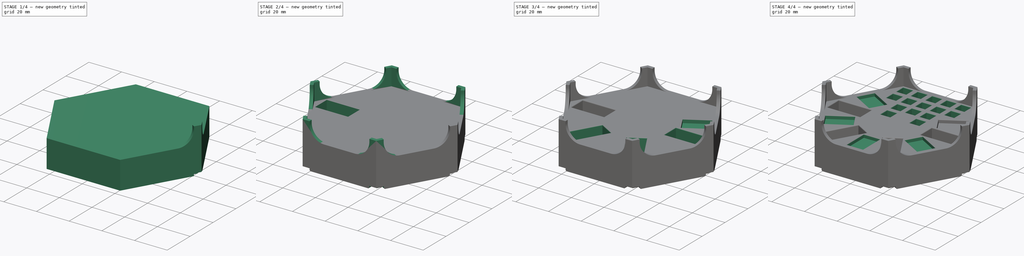
[diagram: build sequence overview — one tinted view per stage of 4, left to right]
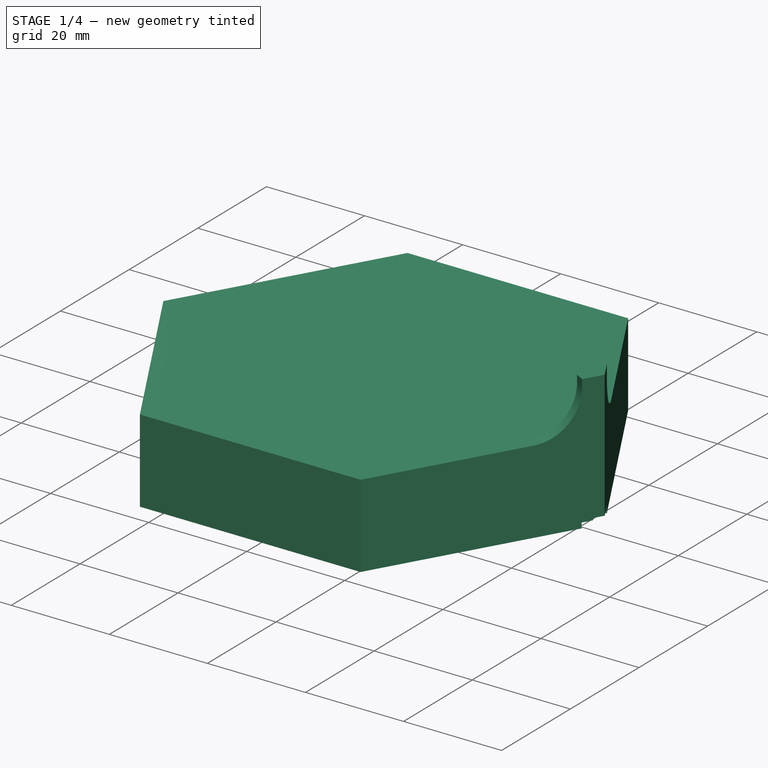
[diagram: stage 1 of 4 — iso view after this stage's code; geometry added in this stage tinted green]
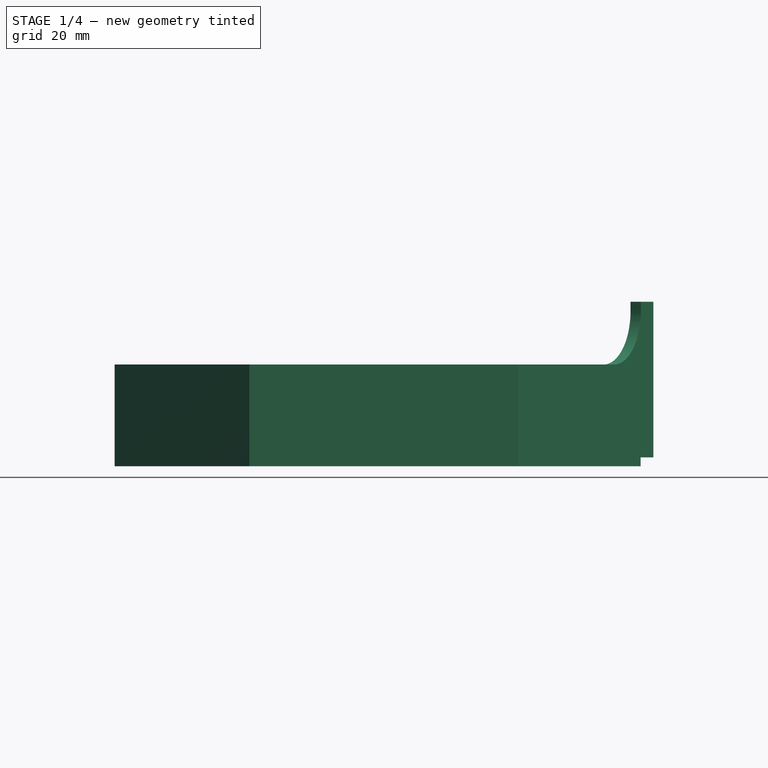
[diagram: stage 1 of 4 — front view after this stage's code; geometry added in this stage tinted green]
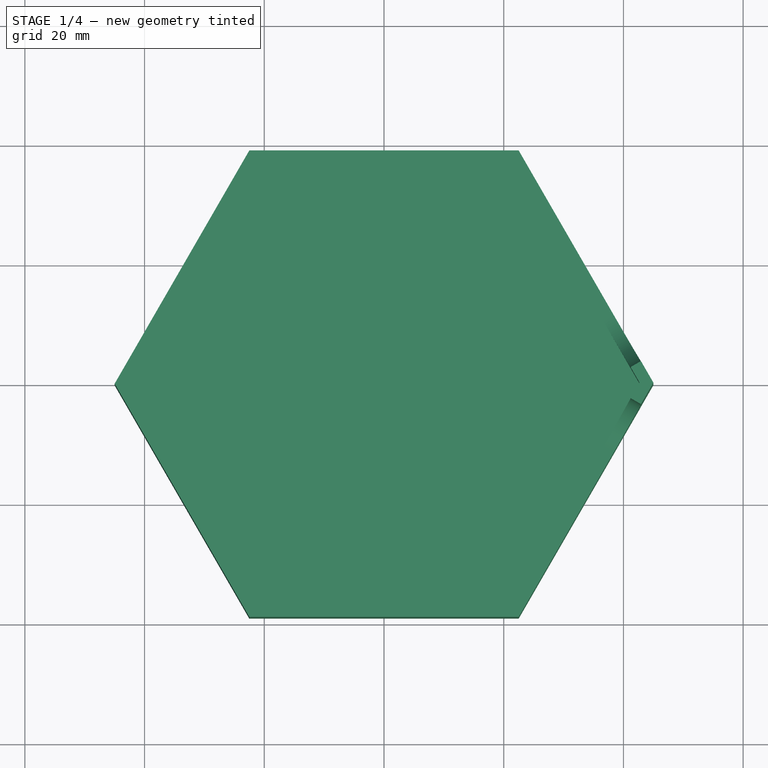
[diagram: stage 1 of 4 — top view after this stage's code; geometry added in this stage tinted green]
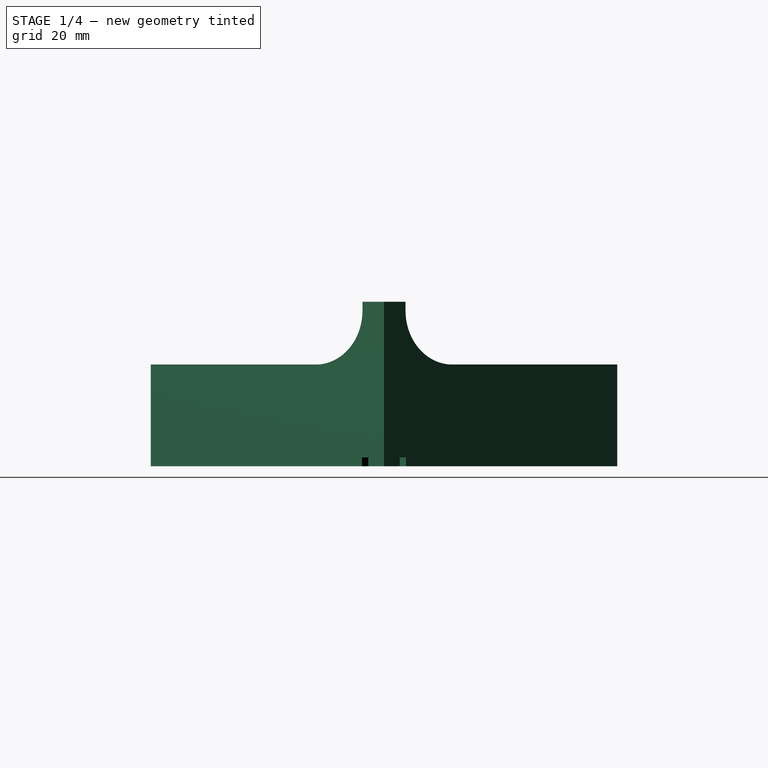
[diagram: stage 1 of 4 — right view after this stage's code; geometry added in this stage tinted green]
FCSTD DOCUMENT  (FreeCAD 1.0R39285 (Git))
Label: catan player part holder
License: All rights reserved
LicenseURL: https://en.wikipedia.org/wiki/All_rights_reserved
objects: Sketcher::SketchObject×6, PartDesign::Fillet×4, PartDesign::Pocket×4, PartDesign::PolarPattern×3, PartDesign::Pad×2, PartDesign::Chamfer×1, PartDesign::Body×1
note: 52 computed .brp shape members not serialized (recipe doc carries the construction recipe); baked Part::Feature solids carry a one-line shape summary decoded from their .brp

FEATURE [Sketcher::SketchObject] Sketch  label="baseSketch"
  ArcFitTolerance = 1e-06
  AttachmentSupport = -> [XY_Plane]
  FullyConstrained = true
  MakeInternals = false
  MapMode = 5
  sketch-geometry (7):
    g0: LineSegment StartX=45 StartY=2.1e-15 StartZ=0 EndX=22.5 EndY=38.9711 EndZ=0
    g1: LineSegment StartX=22.5 StartY=38.9711 StartZ=0 EndX=-22.5 EndY=38.9711 EndZ=0
    g2: LineSegment StartX=-22.5 StartY=38.9711 StartZ=0 EndX=-45 EndY=8.3e-15 EndZ=0
    g3: LineSegment StartX=-45 StartY=8.3e-15 StartZ=0 EndX=-22.5 EndY=-38.9711 EndZ=0
    g4: LineSegment StartX=-22.5 StartY=-38.9711 StartZ=0 EndX=22.5 EndY=-38.9711 EndZ=0
    g5: LineSegment StartX=22.5 StartY=-38.9711 StartZ=0 EndX=45 EndY=2.1e-15 EndZ=0
    g6: Circle [constr] CenterX=0 CenterY=0 CenterZ=0 NormalX=0 NormalY=0 NormalZ=1 AngleXU=0 Radius=45
  constraints (16):
    c: Coincident(g0,g1)
    c: Coincident(g1,g2)
    c: Coincident(g2,g3)
    c: Coincident(g3,g4)
    c: Coincident(g4,g5)
    c: Coincident(g5,g0)
    c: Equal(g0, g1-g5) x5
    c: PointOnObject(g0,g6)
    c: PointOnObject(g1,g6)
    c: PointOnObject(g2,g6)
    c: PointOnObject(g3,g6)
    c: PointOnObject(g4,g6)
    c: PointOnObject(g5,g6)
    c: Radius(g6) = 45
    c: Coincident(g6,g-1)
    c: PointOnObject(g5,g-1)
FEATURE [PartDesign::Pad] Pad  label="basePad"
  Direction = (0,0,1)
  Length = 17
  Length2 = 10
  Profile = -> Sketch
  ReferenceAxis = -> Sketch [N_Axis]
  Refine = true
  Suppressed = false
  Type = 0
FEATURE [Sketcher::SketchObject] Sketch001  label="pillerSketch"
  ArcFitTolerance = 1e-06
  AttachmentSupport = -> [Pad]
  ExternalGeometry = -> [Pad]
  FullyConstrained = true
  MakeInternals = false
  MapMode = 5
  Placement = pos=(0,0,17) rot=(0,0,1;0rad)
  sketch-geometry (6):
    g0: LineSegment StartX=45 StartY=7e-16 StartZ=0 EndX=42.9226 EndY=3.59808 EndZ=0
    g1: LineSegment StartX=42.9226 StartY=3.59808 StartZ=0 EndX=41.1906 EndY=2.59808 EndZ=0
    g2: LineSegment StartX=41.1906 StartY=2.59808 StartZ=0 EndX=42.6906 EndY=2e-16 EndZ=0
    g3: LineSegment StartX=42.6906 StartY=2e-16 StartZ=0 EndX=41.1906 EndY=-2.59808 EndZ=0
    g4: LineSegment StartX=41.1906 StartY=-2.59808 StartZ=0 EndX=42.9226 EndY=-3.59808 EndZ=0
    g5: LineSegment StartX=42.9226 StartY=-3.59808 StartZ=0 EndX=45 EndY=7e-16 EndZ=0
  constraints (17):
    c: Coincident(g-4,g0)
    c: PointOnObject(g0,g-3)
    c: Coincident(g0,g1)
    c: Coincident(g1,g2)
    c: PointOnObject(g2,g-1)
    c: Coincident(g2,g3)
    c: Coincident(g3,g4)
    c: PointOnObject(g4,g-4)
    c: Coincident(g4,g5)
    c: Coincident(g5,g0)
    c: Perpendicular(g1,g0)
    c: Perpendicular(g2,g1)
    c: Perpendicular(g4,g3)
    c: Perpendicular(g5,g4)
    c: Equal(g0,g5)
    c: Distance(g2) = 3
    c: Distance(g1) = 2
FEATURE [PartDesign::Pad] Pad001  label="pillerPad"
  BaseFeature = -> Pad
  Direction = (0,0,1)
  Length = 10.5
  Length2 = 10
  Profile = -> Sketch001
  ReferenceAxis = -> Sketch001 [N_Axis]
  Refine = true
  Suppressed = false
  Type = 0
FEATURE [PartDesign::Fillet] Fillet  label="piller side fillet"
  Base = -> Pad001 [Edge10,Edge13]
  BaseFeature = -> Pad001
  Radius = 9
  Refine = true
  SupportTransform = false
  Suppressed = false
  UseAllEdges = false
FEATURE [Sketcher::SketchObject] Sketch002  label="PillerGroveSketch"
  ArcFitTolerance = 1e-06
  AttachmentSupport = -> [Fillet]
  ExternalGeometry = -> [Sketch001]
  FullyConstrained = true
  MakeInternals = false
  MapMode = 5
  Placement = pos=(0,0,0) rot=(1,0,0;3.14159rad)
  sketch-geometry (8):
    g0: LineSegment [constr] StartX=41.1906 StartY=2.59808 StartZ=0 EndX=41.1406 EndY=2.68468 EndZ=0
    g1: LineSegment [constr] StartX=41.1406 StartY=2.68468 StartZ=0 EndX=41.054 EndY=2.63468 EndZ=0
    g2: LineSegment StartX=42.5751 StartY=0 StartZ=0 EndX=41.054 EndY=-2.63468 EndZ=0
    g3: LineSegment StartX=41.054 StartY=-2.63468 StartZ=0 EndX=42.8726 EndY=-3.68468 EndZ=0
    g4: LineSegment StartX=42.8726 StartY=-3.68468 StartZ=0 EndX=45 EndY=-9e-16 EndZ=0
    g5: LineSegment StartX=42.5751 StartY=0 StartZ=0 EndX=41.054 EndY=2.63468 EndZ=0
    g6: LineSegment StartX=41.054 StartY=2.63468 StartZ=0 EndX=42.8726 EndY=3.68468 EndZ=0
    g7: LineSegment StartX=42.8726 StartY=3.68468 StartZ=0 EndX=45 EndY=-1.1e-15 EndZ=0
  constraints (22):
    c: Coincident(g-5,g0)
    c: Coincident(g0,g1)
    c: Distance(g0) = 0.1
    c: Distance(g1) = 0.1
    c: Perpendicular(g0,g-4)
    c: Perpendicular(g1,g0)
    c: PointOnObject(g2,g-1)
    c: Coincident(g2,g3)
    c: Coincident(g3,g4)
    c: Parallel(g4,g-8)
    c: Parallel(g-7,g3)
    c: Parallel(g-6,g2)
    c: Coincident(g2,g5)
    c: Coincident(g5,g6)
    c: Coincident(g6,g7)
    c: Coincident(g7,g4)
    c: PointOnObject(g6,g-3)
    c: Perpendicular(g6,g7)
    c: Perpendicular(g5,g6)
    c: Equal(g7,g4)
    c: Coincident(g4,g-8)
    c: Coincident(g5,g1)
FEATURE [PartDesign::Pocket] Pocket  label="PillerGrovePocket"
  BaseFeature = -> Fillet
  Direction = (0,0,1)
  Length = 1.5
  Length2 = 5
  Profile = -> Sketch002
  ReferenceAxis = -> Sketch002 [N_Axis]
  Refine = true
  Suppressed = false
  Type = 0
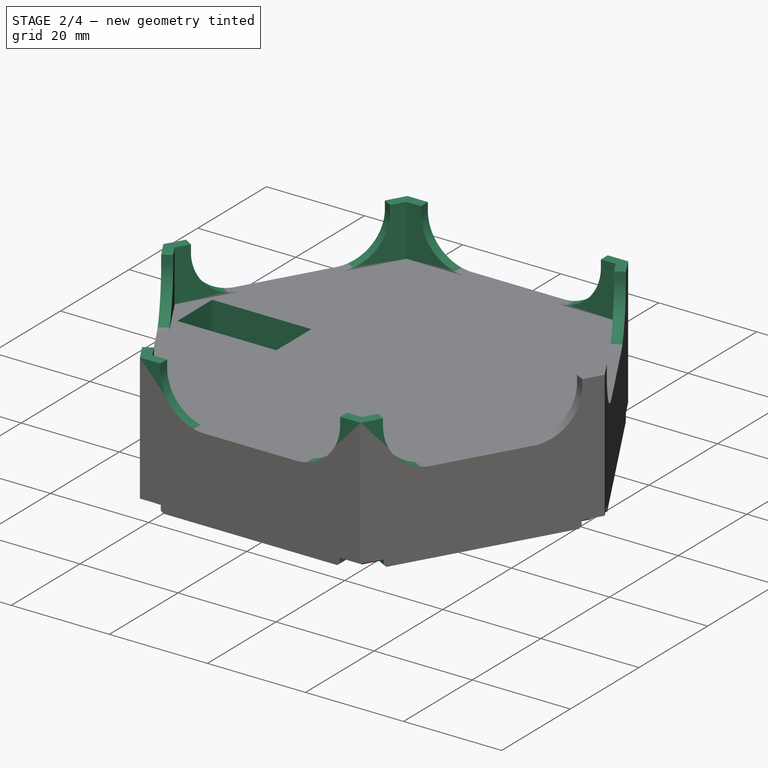
[diagram: stage 2 of 4 — iso view after this stage's code; geometry added in this stage tinted green]
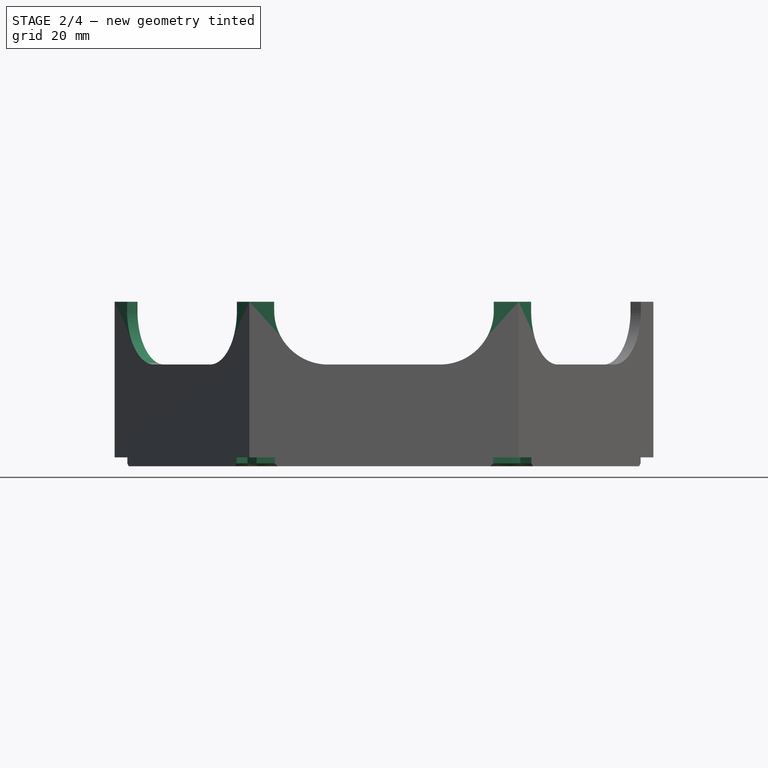
[diagram: stage 2 of 4 — front view after this stage's code; geometry added in this stage tinted green]
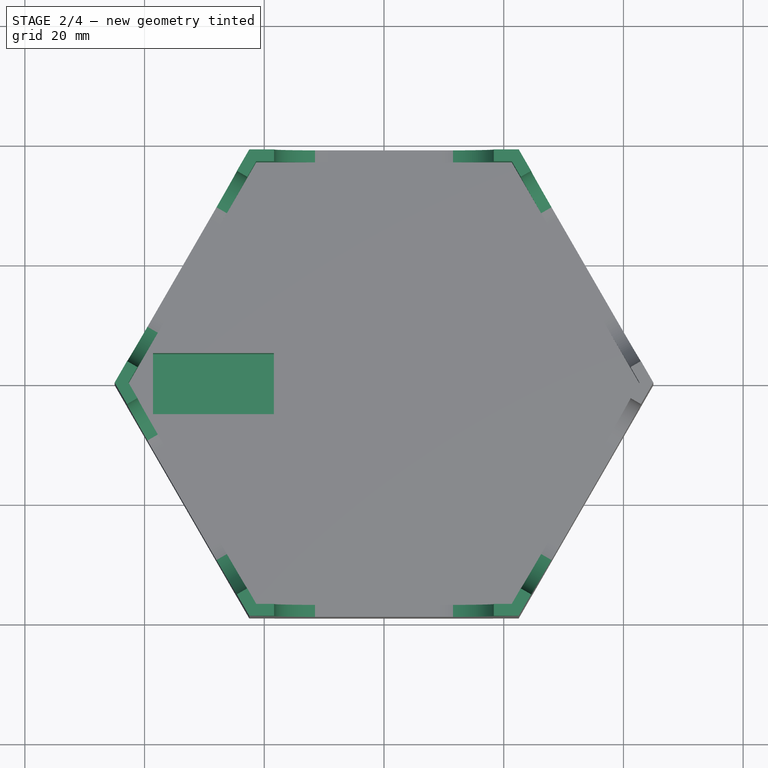
[diagram: stage 2 of 4 — top view after this stage's code; geometry added in this stage tinted green]
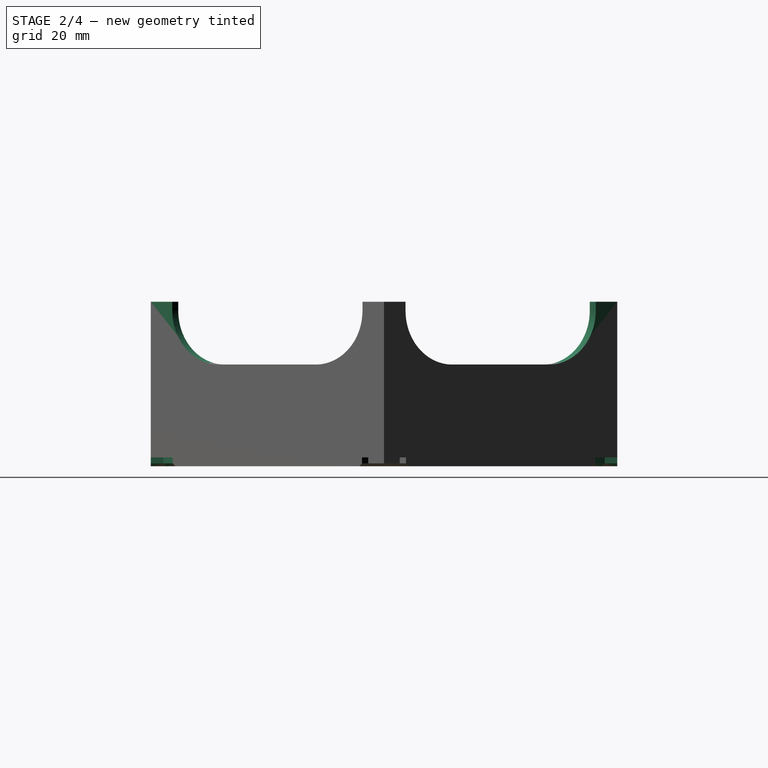
[diagram: stage 2 of 4 — right view after this stage's code; geometry added in this stage tinted green]
FEATURE [PartDesign::Chamfer] Chamfer  label="PillerGroveChamfer"
  Angle = 45
  Base = -> Pocket [Edge51,Edge54,Edge53,Edge52]
  BaseFeature = -> Pocket
  ChamferType = 0
  FlipDirection = false
  Refine = true
  Size = 0.5
  Size2 = 1
  SupportTransform = false
  Suppressed = false
  UseAllEdges = false
FEATURE [PartDesign::PolarPattern] PolarPattern  label="PillerAndGrovePolarPattern"
  Angle = 360
  Axis = -> Sketch002 [N_Axis]
  BaseFeature = -> Chamfer
  Mode = 0
  Occurrences = 6
  Offset = 120
  Originals = -> [Pocket,Chamfer,Fillet,Pad001]
  Refine = true
  Suppressed = false
  TransformMode = 0
FEATURE [Sketcher::SketchObject] Sketch003  label="CitySketch"
  ArcFitTolerance = 1e-06
  AttachmentSupport = -> [PolarPattern]
  ExternalGeometry = -> [PolarPattern]
  FullyConstrained = true
  MakeInternals = false
  MapMode = 5
  Placement = pos=(0,0,17) rot=(0,0,1;0rad)
  sketch-geometry (4):
    g0: LineSegment StartX=-38.5914 StartY=5.1 StartZ=0 EndX=-38.5914 EndY=-5.1 EndZ=0
    g1: LineSegment StartX=-38.5914 StartY=-5.1 StartZ=0 EndX=-18.3914 EndY=-5.1 EndZ=0
    g2: LineSegment StartX=-18.3914 StartY=-5.1 StartZ=0 EndX=-18.3914 EndY=5.1 EndZ=0
    g3: LineSegment StartX=-18.3914 StartY=5.1 StartZ=0 EndX=-38.5914 EndY=5.1 EndZ=0
  constraints (11):
    c: Coincident(g0,g1)
    c: Coincident(g1,g2)
    c: Coincident(g2,g3)
    c: Coincident(g3,g0)
    c: Vertical(g0)
    c: Horizontal(g1)
    c: Horizontal(g3)
    c: Distance(g0,g2) = 20.2
    c: Distance(g1,g3) = 10.2
    c: Symmetric(g2,g1,g-1)
    c: Distance(g0,g-3) = 1
FEATURE [PartDesign::Pocket] Pocket001  label="CityPocket"
  BaseFeature = -> PolarPattern
  Direction = (0,0,-1)
  Length = 9.5
  Length2 = 5
  Profile = -> Sketch003
  ReferenceAxis = -> Sketch003 [N_Axis]
  Refine = true
  Suppressed = false
  Type = 0
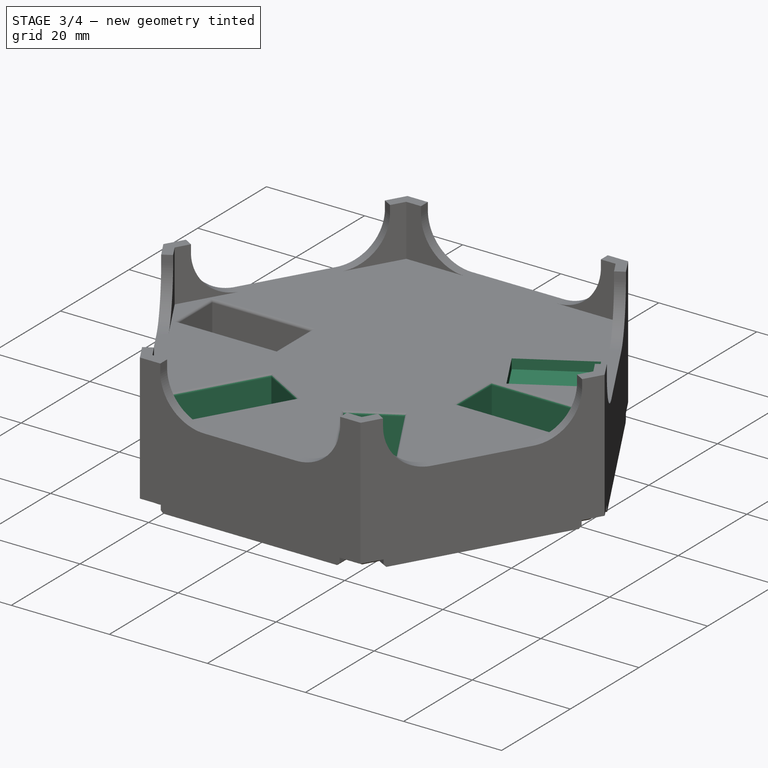
[diagram: stage 3 of 4 — iso view after this stage's code; geometry added in this stage tinted green]
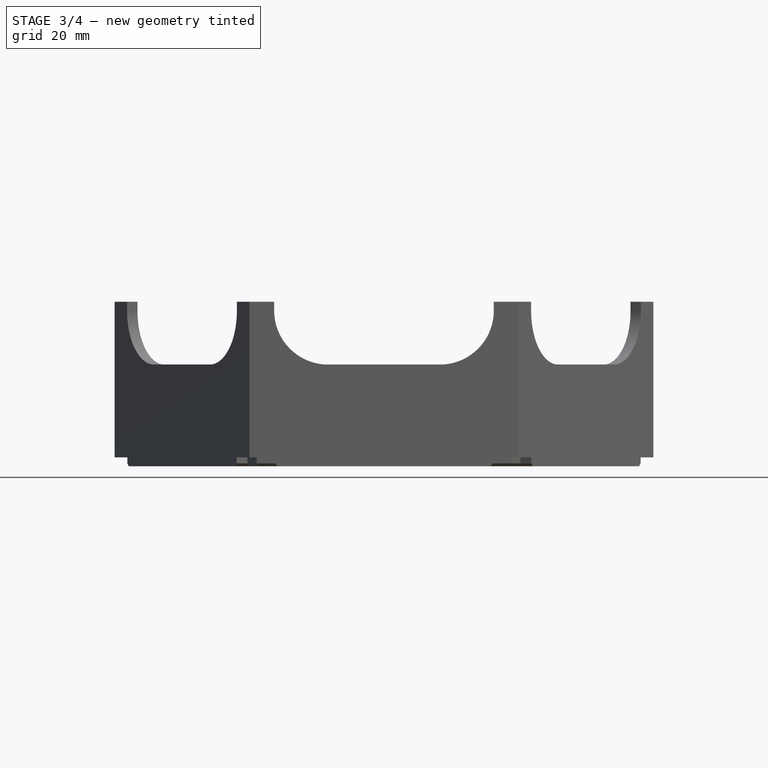
[diagram: stage 3 of 4 — front view after this stage's code; geometry added in this stage tinted green]
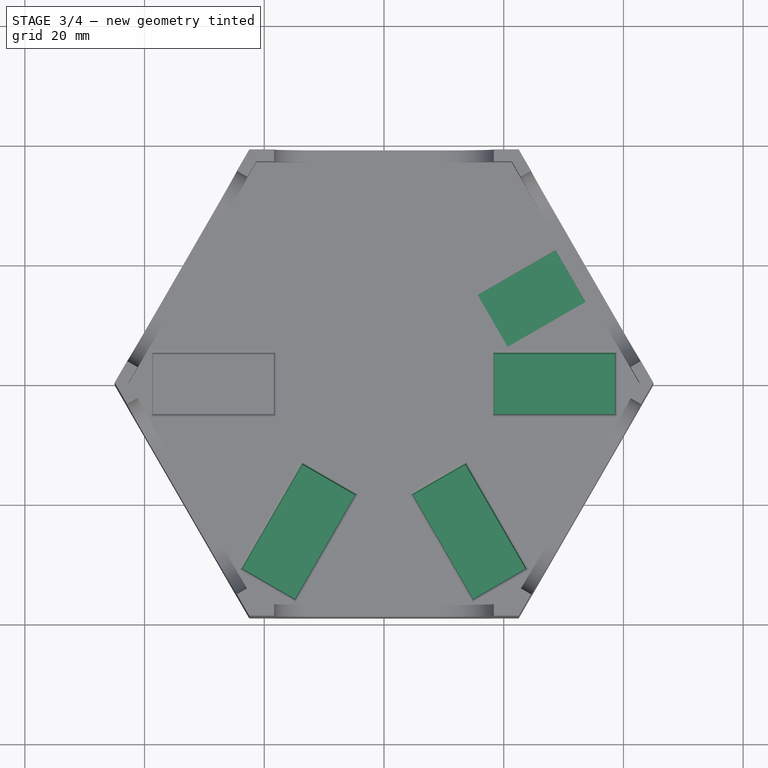
[diagram: stage 3 of 4 — top view after this stage's code; geometry added in this stage tinted green]
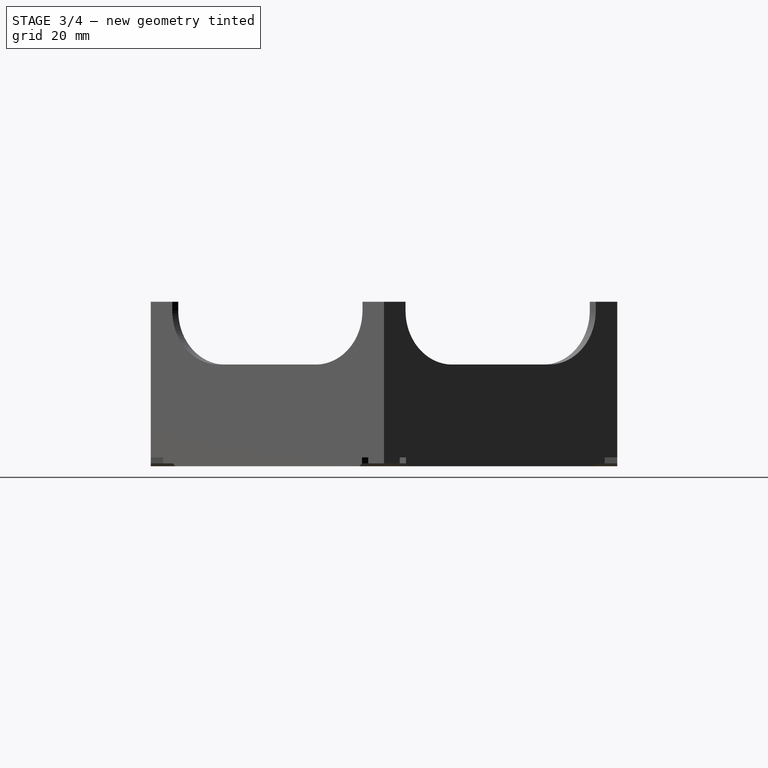
[diagram: stage 3 of 4 — right view after this stage's code; geometry added in this stage tinted green]
FEATURE [PartDesign::Fillet] Fillet001  label="CityFillet"
  Base = -> Pocket001 [Edge197,Edge196,Edge195,Edge194]
  BaseFeature = -> Pocket001
  Radius = 0.5
  Refine = true
  SupportTransform = false
  Suppressed = false
  UseAllEdges = false
FEATURE [PartDesign::PolarPattern] PolarPattern001  label="CityPolarPattern"
  Angle = 360
  Axis = -> Z_Axis
  BaseFeature = -> Fillet001
  Mode = 1
  Occurrences = 4
  Offset = 60
  Originals = -> [Fillet001,Pocket001]
  Refine = true
  Suppressed = false
  TransformMode = 0
FEATURE [Sketcher::SketchObject] Sketch004  label="SettlementSketch"
  ArcFitTolerance = 1e-06
  AttachmentSupport = -> [PolarPattern001]
  ExternalGeometry = -> [PolarPattern001]
  FullyConstrained = true
  MakeInternals = false
  MapMode = 5
  Placement = pos=(0,0,17) rot=(0,0,1;0rad)
  sketch-geometry (6):
    g0: LineSegment StartX=15.6615 StartY=14.8157 StartZ=0 EndX=28.6519 EndY=22.3157 EndZ=0
    g1: LineSegment StartX=28.6519 StartY=22.3157 StartZ=0 EndX=33.6519 EndY=13.6554 EndZ=0
    g2: LineSegment StartX=33.6519 StartY=13.6554 StartZ=0 EndX=20.6615 EndY=6.15544 EndZ=0
    g3: LineSegment StartX=20.6615 StartY=6.15544 StartZ=0 EndX=15.6615 EndY=14.8157 EndZ=0
    g4: LineSegment [constr] StartX=0 StartY=0 StartZ=0 EndX=15.6615 EndY=14.8157 EndZ=0
    g5: LineSegment [constr] StartX=0 StartY=0 StartZ=0 EndX=20.6615 EndY=6.15544 EndZ=0
  constraints (16):
    c: Coincident(g0,g1)
    c: Coincident(g1,g2)
    c: Coincident(g2,g3)
    c: Coincident(g3,g0)
    c: Perpendicular(g0,g1)
    c: Perpendicular(g3,g0)
    c: Perpendicular(g2,g3)
    c: Angle(g-1,g2) = 0.523599
    c: Distance(g0) = 15
    c: Distance(g1) = 10
    c: Distance(g1,g-3) = 1
    c: Coincident(g4,g-1)
    c: Coincident(g4,g0)
    c: Coincident(g5,g4)
    c: Coincident(g5,g2)
    c: Equal(g4,g5)
FEATURE [PartDesign::Pocket] Pocket002  label="SettlementPocket"
  BaseFeature = -> PolarPattern001
  Direction = (0,0,-1)
  Length = 2
  Length2 = 5
  Profile = -> Sketch004
  ReferenceAxis = -> Sketch004 [N_Axis]
  Refine = true
  Suppressed = false
  Type = 0
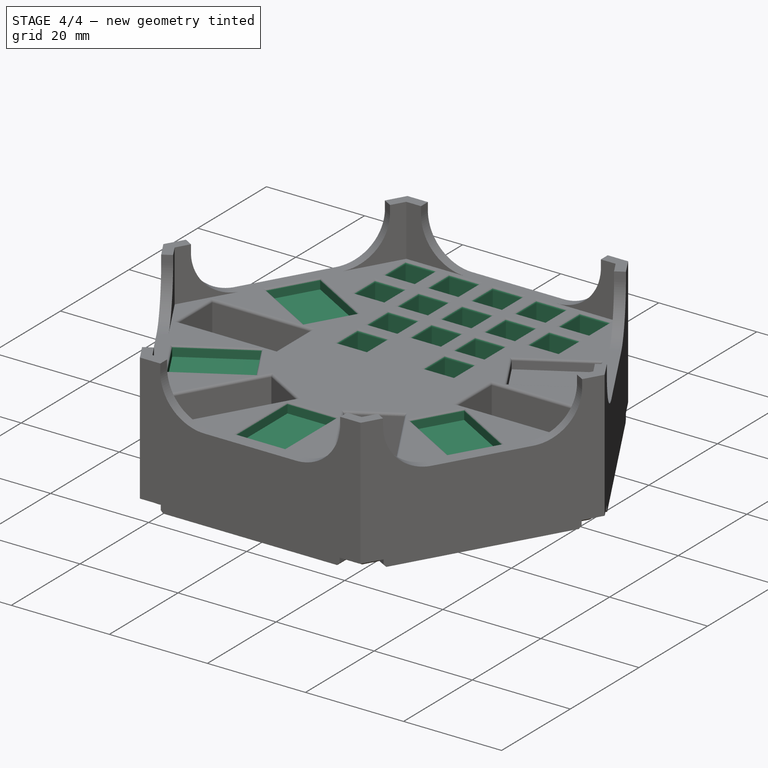
[diagram: stage 4 of 4 — iso view after this stage's code; geometry added in this stage tinted green]
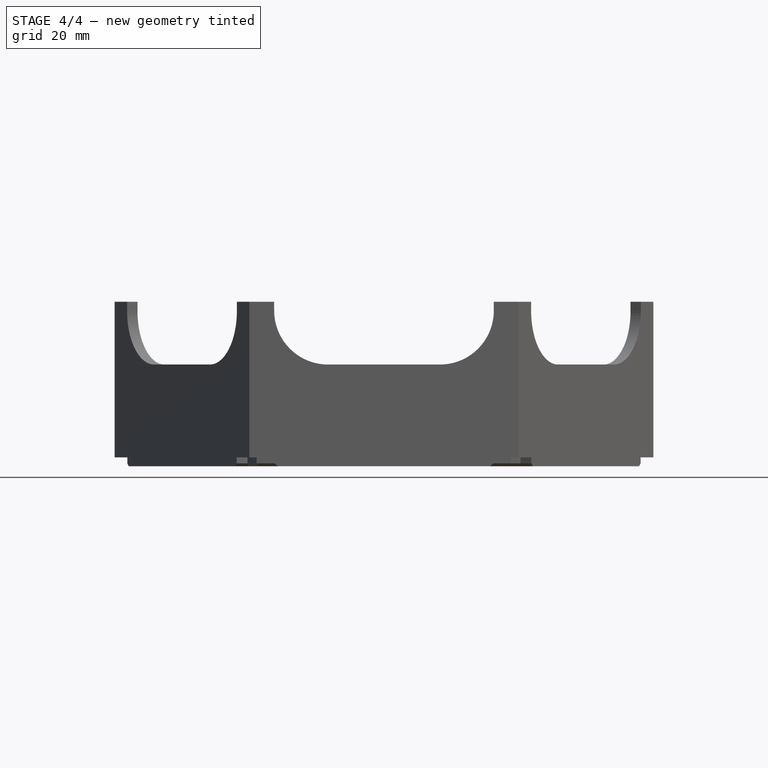
[diagram: stage 4 of 4 — front view after this stage's code; geometry added in this stage tinted green]
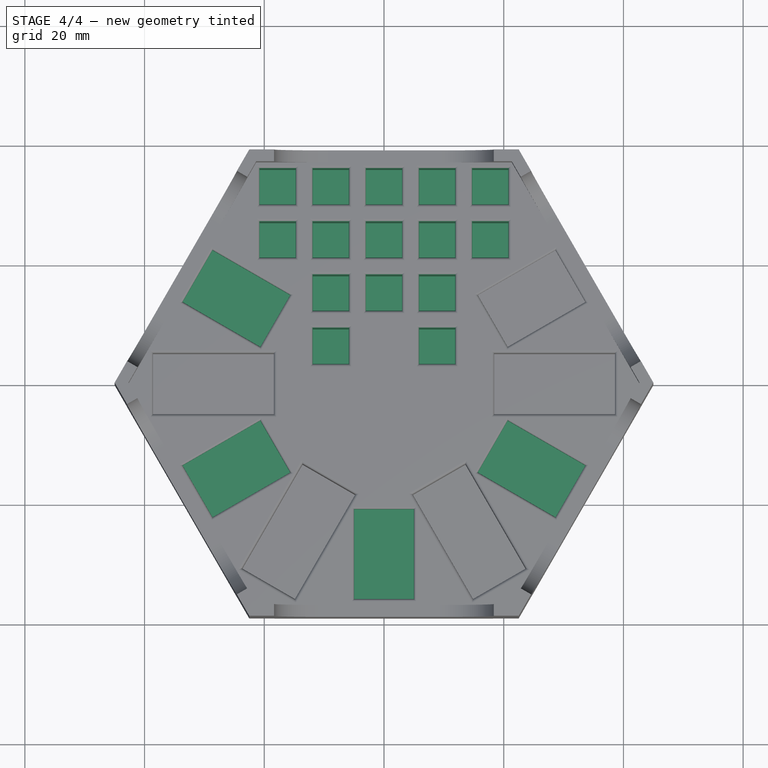
[diagram: stage 4 of 4 — top view after this stage's code; geometry added in this stage tinted green]
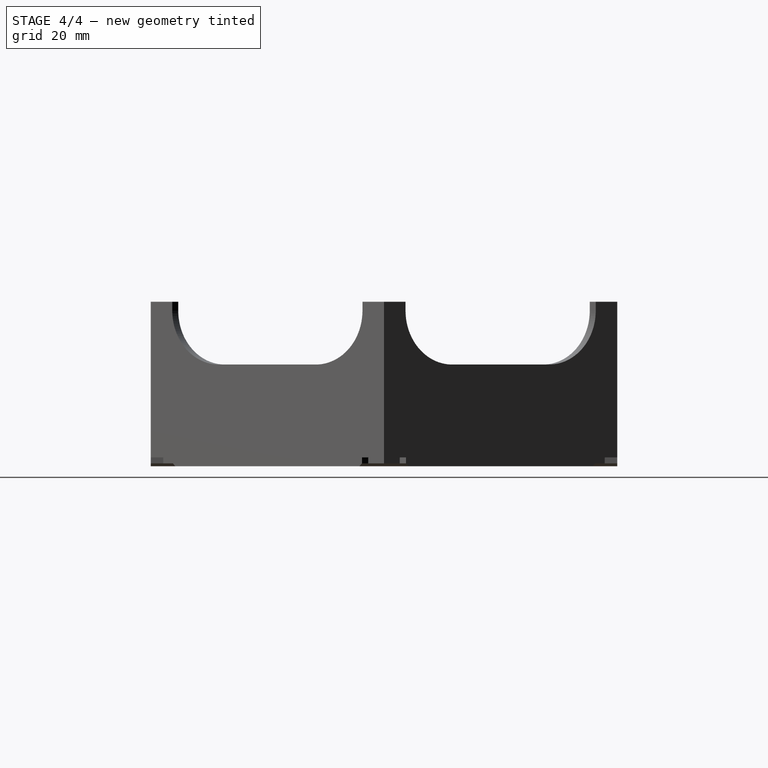
[diagram: stage 4 of 4 — right view after this stage's code; geometry added in this stage tinted green]
FEATURE [PartDesign::Fillet] Fillet002  label="SettlementFillet"
  Base = -> Pocket002 [Edge50,Edge47,Edge49,Edge48]
  BaseFeature = -> Pocket002
  Radius = 0.4
  Refine = true
  SupportTransform = false
  Suppressed = false
  UseAllEdges = false
FEATURE [PartDesign::PolarPattern] PolarPattern002  label="SettlementPolarPattern"
  Angle = 360
  Axis = -> Z_Axis
  BaseFeature = -> Fillet002
  Mode = 1
  Occurrences = 5
  Offset = 60
  Originals = -> [Fillet002,Pocket002]
  Refine = true
  Reversed = true
  Suppressed = false
  TransformMode = 0
FEATURE [Sketcher::SketchObject] Sketch005  label="RoadsSketch"
  ArcFitTolerance = 1e-06
  AttachmentSupport = -> [PolarPattern002]
  ExternalGeometry = -> [PolarPattern002]
  FullyConstrained = true
  MakeInternals = false
  MapMode = 5
  Placement = pos=(0,0,17) rot=(0,0,1;0rad)
  sketch-geometry (76):
    g0: LineSegment [constr] StartX=-20.7679 StartY=35.9711 StartZ=0 EndX=-20.7679 EndY=9.31922 EndZ=0
    g1: LineSegment [constr] StartX=-11.884 StartY=35.9711 StartZ=0 EndX=-11.884 EndY=9.31922 EndZ=0
    g2: LineSegment [constr] StartX=-3 StartY=35.9711 StartZ=0 EndX=-3 EndY=9.31922 EndZ=0
    g3: LineSegment [constr] StartX=5.88397 StartY=35.9711 StartZ=0 EndX=5.88397 EndY=9.31922 EndZ=0
    g4: LineSegment [constr] StartX=14.7679 StartY=35.9711 StartZ=0 EndX=14.7679 EndY=9.31922 EndZ=0
    g5: LineSegment [constr] StartX=20.7679 StartY=35.9711 StartZ=0 EndX=20.7679 EndY=27.0872 EndZ=0
    g6: LineSegment [constr] StartX=20.7679 StartY=27.0872 StartZ=0 EndX=20.7679 EndY=18.2032 EndZ=0
    g7: LineSegment [constr] StartX=20.7679 StartY=18.2032 StartZ=0 EndX=20.7679 EndY=9.31922 EndZ=0
    g8: LineSegment [constr] StartX=20.7679 StartY=35.9711 StartZ=0 EndX=14.7679 EndY=35.9711 EndZ=0
    g9: LineSegment [constr] StartX=14.7679 StartY=35.9711 StartZ=0 EndX=5.88397 EndY=35.9711 EndZ=0
    g10: LineSegment [constr] StartX=5.88397 StartY=35.9711 StartZ=0 EndX=-3 EndY=35.9711 EndZ=0
    g11: LineSegment [constr] StartX=-3 StartY=35.9711 StartZ=0 EndX=-11.884 EndY=35.9711 EndZ=0
    g12: LineSegment [constr] StartX=-11.884 StartY=35.9711 StartZ=0 EndX=-20.7679 EndY=35.9711 EndZ=0
    g13: LineSegment [constr] StartX=20.7679 StartY=27.0872 StartZ=0 EndX=-20.7679 EndY=27.0872 EndZ=0
    g14: LineSegment [constr] StartX=20.7679 StartY=18.2032 StartZ=0 EndX=-20.7679 EndY=18.2032 EndZ=0
    g15: LineSegment [constr] StartX=20.7679 StartY=9.31922 StartZ=0 EndX=-20.7679 EndY=9.31922 EndZ=0
    g16: LineSegment StartX=-20.7679 StartY=35.9711 StartZ=0 EndX=-20.7679 EndY=29.9711 EndZ=0
    g17: LineSegment StartX=-20.7679 StartY=29.9711 StartZ=0 EndX=-14.7679 EndY=29.9711 EndZ=0
    g18: LineSegment StartX=-14.7679 StartY=29.9711 StartZ=0 EndX=-14.7679 EndY=35.9711 EndZ=0
    g19: LineSegment StartX=-14.7679 StartY=35.9711 StartZ=0 EndX=-20.7679 EndY=35.9711 EndZ=0
    g20: LineSegment StartX=-11.884 StartY=35.9711 StartZ=0 EndX=-11.884 EndY=29.9711 EndZ=0
    g21: LineSegment StartX=-11.884 StartY=29.9711 StartZ=0 EndX=-5.88397 EndY=29.9711 EndZ=0
    g22: LineSegment StartX=-5.88397 StartY=29.9711 StartZ=0 EndX=-5.88397 EndY=35.9711 EndZ=0
    g23: LineSegment StartX=-5.88397 StartY=35.9711 StartZ=0 EndX=-11.884 EndY=35.9711 EndZ=0
    g24: LineSegment StartX=-3 StartY=35.9711 StartZ=0 EndX=-3 EndY=29.9711 EndZ=0
    g25: LineSegment StartX=-3 StartY=29.9711 StartZ=0 EndX=3 EndY=29.9711 EndZ=0
    g26: LineSegment StartX=3 StartY=29.9711 StartZ=0 EndX=3 EndY=35.9711 EndZ=0
    g27: LineSegment StartX=3 StartY=35.9711 StartZ=0 EndX=-3 EndY=35.9711 EndZ=0
    g28: LineSegment StartX=5.88397 StartY=35.9711 StartZ=0 EndX=5.88397 EndY=29.9711 EndZ=0
    g29: LineSegment StartX=5.88397 StartY=29.9711 StartZ=0 EndX=11.884 EndY=29.9711 EndZ=0
    g30: LineSegment StartX=11.884 StartY=29.9711 StartZ=0 EndX=11.884 EndY=35.9711 EndZ=0
    g31: LineSegment StartX=11.884 StartY=35.9711 StartZ=0 EndX=5.88397 EndY=35.9711 EndZ=0
    g32: LineSegment StartX=14.7679 StartY=35.9711 StartZ=0 EndX=14.7679 EndY=29.9711 EndZ=0
    g33: LineSegment StartX=14.7679 StartY=29.9711 StartZ=0 EndX=20.7679 EndY=29.9711 EndZ=0
    g34: LineSegment StartX=20.7679 StartY=29.9711 StartZ=0 EndX=20.7679 EndY=35.9711 EndZ=0
    g35: LineSegment StartX=20.7679 StartY=35.9711 StartZ=0 EndX=14.7679 EndY=35.9711 EndZ=0
    g36: LineSegment StartX=-20.7679 StartY=27.0872 StartZ=0 EndX=-20.7679 EndY=21.0872 EndZ=0
    g37: LineSegment StartX=-20.7679 StartY=21.0872 StartZ=0 EndX=-14.7679 EndY=21.0872 EndZ=0
    g38: LineSegment StartX=-14.7679 StartY=21.0872 StartZ=0 EndX=-14.7679 EndY=27.0872 EndZ=0
    g39: LineSegment StartX=-14.7679 StartY=27.0872 StartZ=0 EndX=-20.7679 EndY=27.0872 EndZ=0
    g40: LineSegment StartX=-11.884 StartY=27.0872 StartZ=0 EndX=-11.884 EndY=21.0872 EndZ=0
    g41: LineSegment StartX=-11.884 StartY=21.0872 StartZ=0 EndX=-5.88397 EndY=21.0872 EndZ=0
    g42: LineSegment StartX=-5.88397 StartY=21.0872 StartZ=0 EndX=-5.88397 EndY=27.0872 EndZ=0
    g43: LineSegment StartX=-5.88397 StartY=27.0872 StartZ=0 EndX=-11.884 EndY=27.0872 EndZ=0
    g44: LineSegment StartX=-3 StartY=27.0872 StartZ=0 EndX=-3 EndY=21.0872 EndZ=0
    g45: LineSegment StartX=-3 StartY=21.0872 StartZ=0 EndX=3 EndY=21.0872 EndZ=0
    g46: LineSegment StartX=3 StartY=21.0872 StartZ=0 EndX=3 EndY=27.0872 EndZ=0
    g47: LineSegment StartX=3 StartY=27.0872 StartZ=0 EndX=-3 EndY=27.0872 EndZ=0
    g48: LineSegment StartX=5.88397 StartY=27.0872 StartZ=0 EndX=5.88397 EndY=21.0872 EndZ=0
    g49: LineSegment StartX=5.88397 StartY=21.0872 StartZ=0 EndX=11.884 EndY=21.0872 EndZ=0
    g50: LineSegment StartX=11.884 StartY=21.0872 StartZ=0 EndX=11.884 EndY=27.0872 EndZ=0
    g51: LineSegment StartX=11.884 StartY=27.0872 StartZ=0 EndX=5.88397 EndY=27.0872 EndZ=0
    g52: LineSegment StartX=14.7679 StartY=27.0872 StartZ=0 EndX=14.7679 EndY=21.0872 EndZ=0
    g53: LineSegment StartX=14.7679 StartY=21.0872 StartZ=0 EndX=20.7679 EndY=21.0872 EndZ=0
    g54: LineSegment StartX=20.7679 StartY=21.0872 StartZ=0 EndX=20.7679 EndY=27.0872 EndZ=0
    g55: LineSegment StartX=20.7679 StartY=27.0872 StartZ=0 EndX=14.7679 EndY=27.0872 EndZ=0
    g56: LineSegment StartX=-11.884 StartY=18.2032 StartZ=0 EndX=-11.884 EndY=12.2032 EndZ=0
    g57: LineSegment StartX=-11.884 StartY=12.2032 StartZ=0 EndX=-5.88397 EndY=12.2032 EndZ=0
    g58: LineSegment StartX=-5.88397 StartY=12.2032 StartZ=0 EndX=-5.88397 EndY=18.2032 EndZ=0
    g59: LineSegment StartX=-5.88397 StartY=18.2032 StartZ=0 EndX=-11.884 EndY=18.2032 EndZ=0
    g60: LineSegment StartX=-3 StartY=18.2032 StartZ=0 EndX=-3 EndY=12.2032 EndZ=0
    g61: LineSegment StartX=-3 StartY=12.2032 StartZ=0 EndX=3 EndY=12.2032 EndZ=0
    g62: LineSegment StartX=3 StartY=12.2032 StartZ=0 EndX=3 EndY=18.2032 EndZ=0
    g63: LineSegment StartX=3 StartY=18.2032 StartZ=0 EndX=-3 EndY=18.2032 EndZ=0
    g64: LineSegment StartX=5.88397 StartY=18.2032 StartZ=0 EndX=5.88397 EndY=12.2032 EndZ=0
    g65: LineSegment StartX=5.88397 StartY=12.2032 StartZ=0 EndX=11.884 EndY=12.2032 EndZ=0
    g66: LineSegment StartX=11.884 StartY=12.2032 StartZ=0 EndX=11.884 EndY=18.2032 EndZ=0
    g67: LineSegment StartX=11.884 StartY=18.2032 StartZ=0 EndX=5.88397 EndY=18.2032 EndZ=0
    g68: LineSegment StartX=-11.884 StartY=9.31922 StartZ=0 EndX=-11.884 EndY=3.31922 EndZ=0
    g69: LineSegment StartX=-11.884 StartY=3.31922 StartZ=0 EndX=-5.88397 EndY=3.31922 EndZ=0
    g70: LineSegment StartX=-5.88397 StartY=3.31922 StartZ=0 EndX=-5.88397 EndY=9.31922 EndZ=0
    g71: LineSegment StartX=-5.88397 StartY=9.31922 StartZ=0 EndX=-11.884 EndY=9.31922 EndZ=0
    g72: LineSegment StartX=5.88397 StartY=9.31922 StartZ=0 EndX=5.88397 EndY=3.31922 EndZ=0
    g73: LineSegment StartX=5.88397 StartY=3.31922 StartZ=0 EndX=11.884 EndY=3.31922 EndZ=0
    g74: LineSegment StartX=11.884 StartY=3.31922 StartZ=0 EndX=11.884 EndY=9.31922 EndZ=0
    g75: LineSegment StartX=11.884 StartY=9.31922 StartZ=0 EndX=5.88397 EndY=9.31922 EndZ=0
  constraints (221):
    c: Vertical(g0)
    c: Vertical(g1)
    c: Vertical(g2)
    c: Vertical(g3)
    c: Vertical(g4)
    c: Vertical(g5)
    c: Vertical(g6)
    c: Coincident(g8,g5)
    c: Coincident(g8,g4)
    c: Coincident(g9,g4)
    c: Coincident(g9,g3)
    c: Coincident(g10,g3)
    c: Coincident(g10,g2)
    c: Coincident(g11,g2)
    c: Coincident(g11,g1)
    c: Coincident(g12,g1)
    c: Coincident(g12,g0)
    c: Coincident(g13,g5)
    c: PointOnObject(g13,g0)
    c: Horizontal(g13)
    c: Coincident(g14,g6)
    c: PointOnObject(g14,g0)
    c: Horizontal(g14)
    c: Coincident(g15,g7)
    c: Horizontal(g15)
    c: PointOnObject(g4,g15)
    c: PointOnObject(g3,g15)
    c: PointOnObject(g2,g15)
    c: PointOnObject(g1,g15)
    c: Coincident(g0,g15)
    c: Equal(g7,g6)
    c: Equal(g6,g5)
    c: Coincident(g5,g6)
    c: Coincident(g6,g7)
    c: Horizontal(g12)
    c: Horizontal(g11)
    c: Horizontal(g10)
    c: Horizontal(g9)
    c: Vertical(g7)
    c: Equal(g5,g9)
    c: Equal(g9,g10)
    c: Equal(g10,g11)
    c: Equal(g11,g12)
    c: Distance(g8) = 6
    c: Symmetric(g0,g5,g-2)
    c: Distance(g5,g-3) = 1
    c: Distance(g5,g-4) = 1
    c: Coincident(g16,g17)
    c: Coincident(g17,g18)
    c: Coincident(g18,g19)
    c: Coincident(g19,g16)
    c: Vertical(g16)
    c: Vertical(g18)
    c: Horizontal(g17)
    c: Horizontal(g19)
    c: Distance(g16,g18) = 6
    c: Distance(g17,g19) = 6
    c: Coincident(g16,g0)
    c: Coincident(g20,g21)
    c: Coincident(g21,g22)
    c: Coincident(g22,g23)
    c: Coincident(g23,g20)
    c: Vertical(g20)
    c: Vertical(g22)
    c: Horizontal(g21)
    c: Horizontal(g23)
    c: Distance(g20,g22) = 6
    c: Distance(g21,g23) = 6
    c: Coincident(g20,g1)
    c: Coincident(g24,g25)
    c: Coincident(g25,g26)
    c: Coincident(g26,g27)
    c: Coincident(g27,g24)
    c: Vertical(g24)
    c: Vertical(g26)
    c: Horizontal(g25)
    c: Horizontal(g27)
    c: Distance(g24,g26) = 6
    c: Distance(g25,g27) = 6
    c: Coincident(g24,g2)
    c: Coincident(g28,g29)
    c: Coincident(g29,g30)
    c: Coincident(g30,g31)
    c: Coincident(g31,g28)
    c: Vertical(g28)
    c: Vertical(g30)
    c: Horizontal(g29)
    c: Horizontal(g31)
    c: Distance(g28,g30) = 6
    c: Distance(g29,g31) = 6
    c: Coincident(g28,g3)
    c: Coincident(g32,g33)
    c: Coincident(g33,g34)
    c: Coincident(g34,g35)
    c: Coincident(g35,g32)
    c: Vertical(g32)
    c: Vertical(g34)
    c: Horizontal(g33)
    c: Horizontal(g35)
    c: Distance(g33,g35) = 6
    c: Coincident(g32,g4)
    c: PointOnObject(g33,g5)
    c: Coincident(g36,g37)
    c: Coincident(g37,g38)
    c: Coincident(g38,g39)
    c: Coincident(g39,g36)
    c: Vertical(g36)
    c: Vertical(g38)
    c: Horizontal(g37)
    c: Horizontal(g39)
    c: Distance(g36,g38) = 6
    c: Distance(g37,g39) = 6
    c: Coincident(g36,g13)
    c: Coincident(g40,g41)
    c: Coincident(g41,g42)
    c: Coincident(g42,g43)
    c: Coincident(g43,g40)
    c: Vertical(g40)
    c: Vertical(g42)
    c: Horizontal(g41)
    c: Horizontal(g43)
    c: Distance(g40,g42) = 6
    c: Distance(g41,g43) = 6
    c: PointOnObject(g40,g13)
    c: PointOnObject(g40,g1)
    c: Coincident(g44,g45)
    c: Coincident(g45,g46)
    c: Coincident(g46,g47)
    c: Coincident(g47,g44)
    c: Vertical(g44)
    c: Vertical(g46)
    c: Horizontal(g45)
    c: Horizontal(g47)
    c: Distance(g44,g46) = 6
    c: Distance(g45,g47) = 6
    c: PointOnObject(g44,g2)
    c: PointOnObject(g44,g13)
    c: Coincident(g48,g49)
    c: Coincident(g49,g50)
    c: Coincident(g50,g51)
    c: Coincident(g51,g48)
    c: Vertical(g48)
    c: Vertical(g50)
    c: Horizontal(g49)
    c: Horizontal(g51)
    c: Distance(g48,g50) = 6
    c: Distance(g49,g51) = 6
    c: PointOnObject(g48,g3)
    c: PointOnObject(g48,g13)
    c: Coincident(g52,g53)
    c: Coincident(g53,g54)
    c: Coincident(g54,g55)
    c: Coincident(g55,g52)
    c: Vertical(g52)
    c: Vertical(g54)
    c: Horizontal(g53)
    c: Horizontal(g55)
    c: Distance(g52,g54) = 6
    c: Distance(g53,g55) = 6
    c: PointOnObject(g52,g13)
    c: PointOnObject(g52,g4)
    c: Coincident(g56,g57)
    c: Coincident(g57,g58)
    c: Coincident(g58,g59)
    c: Coincident(g59,g56)
    c: Vertical(g56)
    c: Vertical(g58)
    c: Horizontal(g57)
    c: Horizontal(g59)
    c: Distance(g56,g58) = 6
    c: Distance(g57,g59) = 6
    c: PointOnObject(g56,g14)
    c: Coincident(g60,g61)
    c: Coincident(g61,g62)
    c: Coincident(g62,g63)
    c: Coincident(g63,g60)
    c: Vertical(g60)
    c: Vertical(g62)
    c: Horizontal(g61)
    c: Horizontal(g63)
    c: Distance(g60,g62) = 6
    c: Distance(g61,g63) = 6
    c: PointOnObject(g60,g14)
    c: Coincident(g64,g65)
    c: Coincident(g65,g66)
    c: Coincident(g66,g67)
    c: Coincident(g67,g64)
    c: Vertical(g64)
    c: Vertical(g66)
    c: Horizontal(g65)
    c: Horizontal(g67)
    c: Distance(g64,g66) = 6
    c: Distance(g65,g67) = 6
    c: PointOnObject(g64,g14)
    c: Coincident(g68,g69)
    c: Coincident(g69,g70)
    c: Coincident(g70,g71)
    c: Coincident(g71,g68)
    c: Vertical(g68)
    c: Vertical(g70)
    c: Horizontal(g69)
    c: Horizontal(g71)
    c: Distance(g68,g70) = 6
    c: Distance(g69,g71) = 6
    c: PointOnObject(g68,g15)
    c: Coincident(g72,g73)
    c: Coincident(g73,g74)
    c: Coincident(g74,g75)
    c: Coincident(g75,g72)
    c: Vertical(g72)
    c: Vertical(g74)
    c: Horizontal(g73)
    c: Horizontal(g75)
    c: Distance(g72,g74) = 6
    c: Distance(g73,g75) = 6
    c: PointOnObject(g72,g15)
    c: PointOnObject(g72,g3)
    c: PointOnObject(g68,g1)
    c: PointOnObject(g64,g3)
    c: PointOnObject(g60,g2)
    c: PointOnObject(g56,g1)
FEATURE [PartDesign::Pocket] Pocket003  label="RoadPocket"
  BaseFeature = -> PolarPattern002
  Direction = (0,0,-1)
  Length = 16
  Length2 = 5
  Profile = -> Sketch005
  ReferenceAxis = -> Sketch005 [N_Axis]
  Refine = true
  Suppressed = false
  Type = 0
FEATURE [PartDesign::Fillet] Fillet003  label="RoadFillet"
  Base = -> Pocket003 [Edge83,Edge86,Edge85,Edge84,Edge74,Edge71,Edge72,Edge73,Edge88,Edge87,Edge90,Edge89,Edge91,Edge94,Edge93,Edge92,Edge119,Edge122,Edge121,Edge120,Edge123,Edge124,Edge118,Edge117,Edge116,Edge115,Edge113,Edge114,Edge111,Edge112,Edge102,Edge99,Edge101,Edge100,Edge98,Edge95,Edge96,Edge97,Edge125,Edge126,+20 more]
  BaseFeature = -> Pocket003
  Radius = 0.5
  Refine = true
  SupportTransform = false
  Suppressed = false
  UseAllEdges = false
FEATURE [PartDesign::Body] Body
  AllowCompound = false
  Group = -> [Sketch,Pad,Sketch001,Pad001,Fillet,Sketch002,Pocket,Chamfer,PolarPattern,Sketch003,Pocket001,Fillet001,PolarPattern001,Sketch004,Pocket002,Fillet002,PolarPattern002,Sketch005,Pocket003,Fillet003]
  Origin = -> Origin
  Tip = -> Fillet003
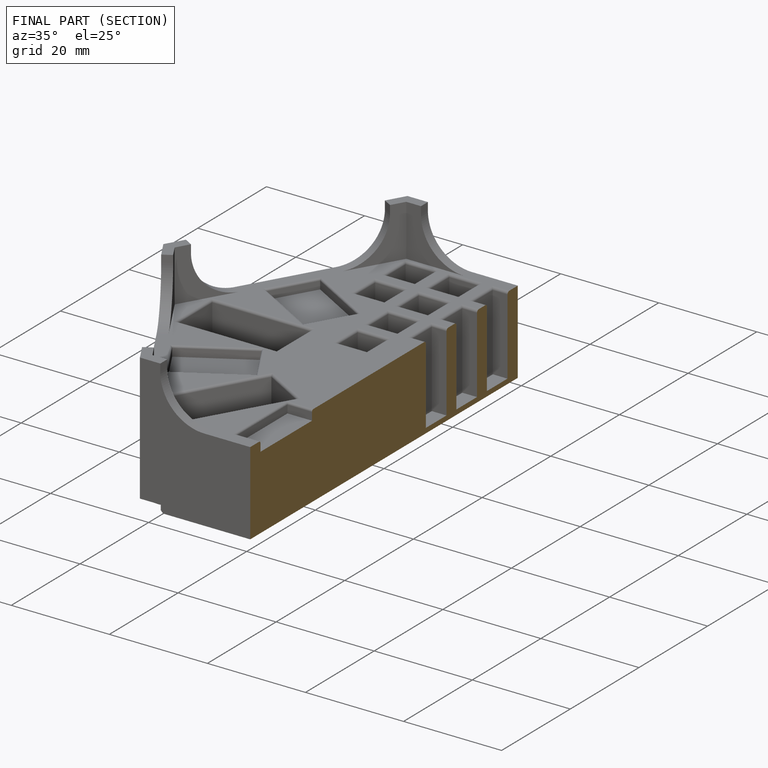
[diagram: finished part — half-section view (interior)]
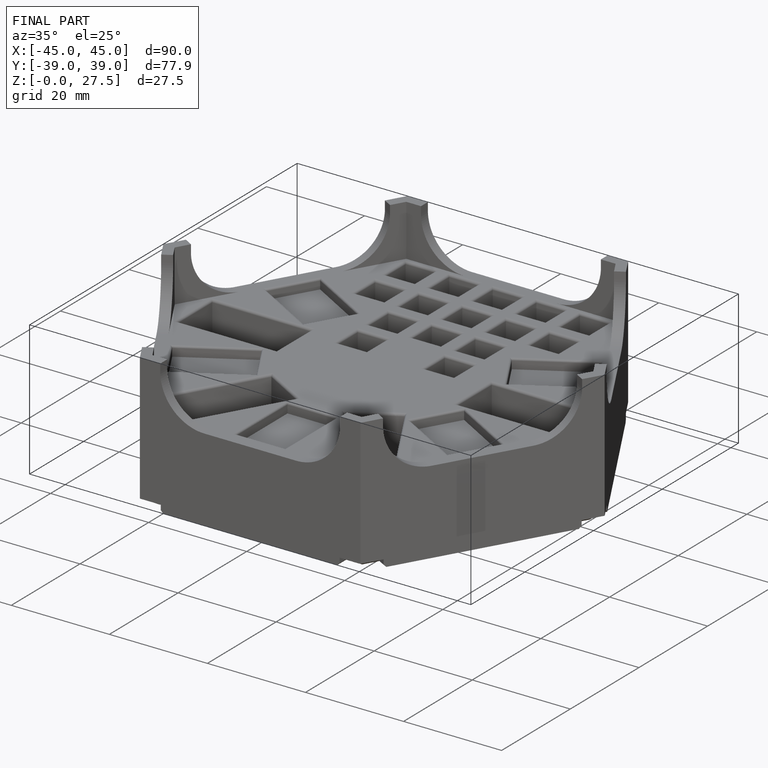
[diagram: finished part — iso view with bounding-box wireframe]
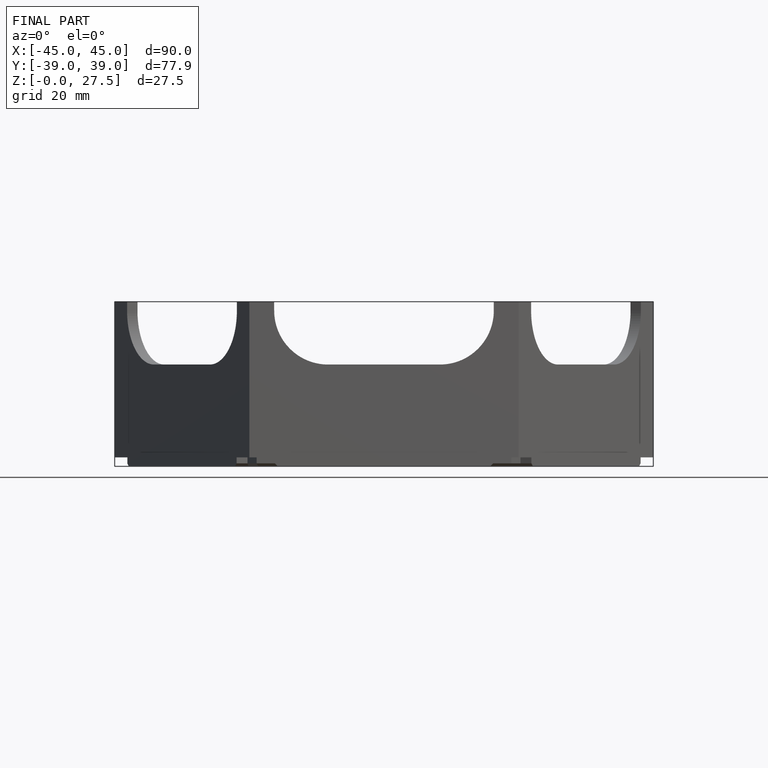
[diagram: finished part — front view with bounding-box wireframe]
